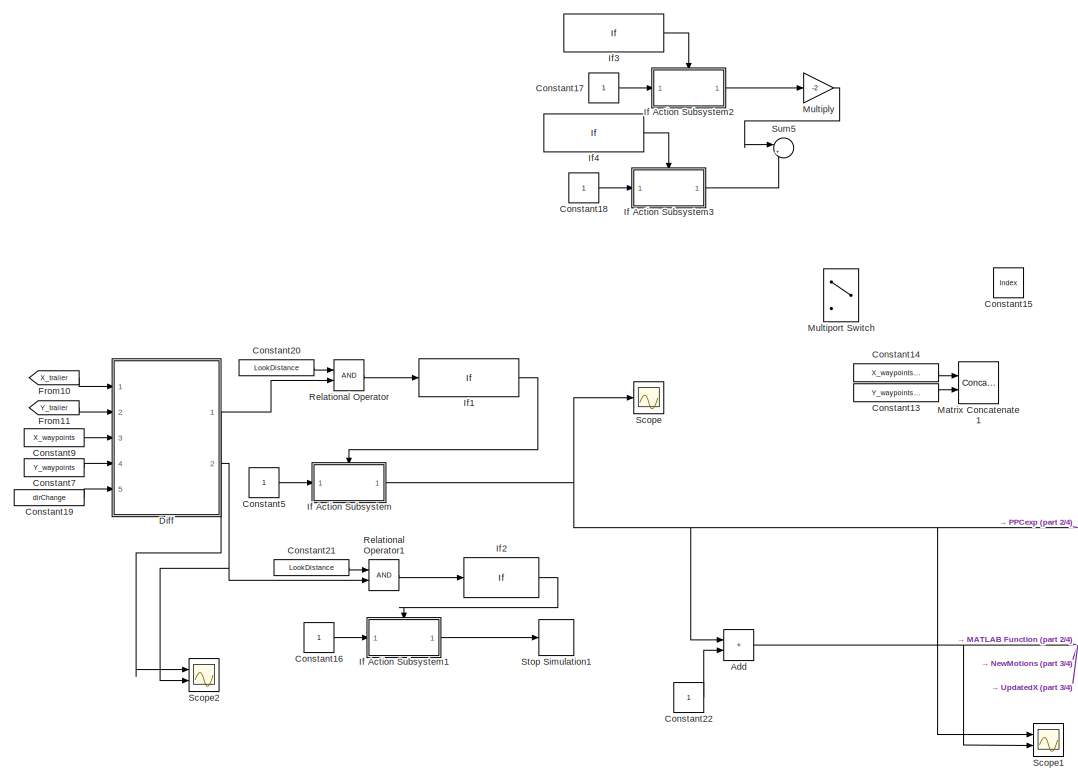
[diagram: root canvas - part 1/4, top left region]
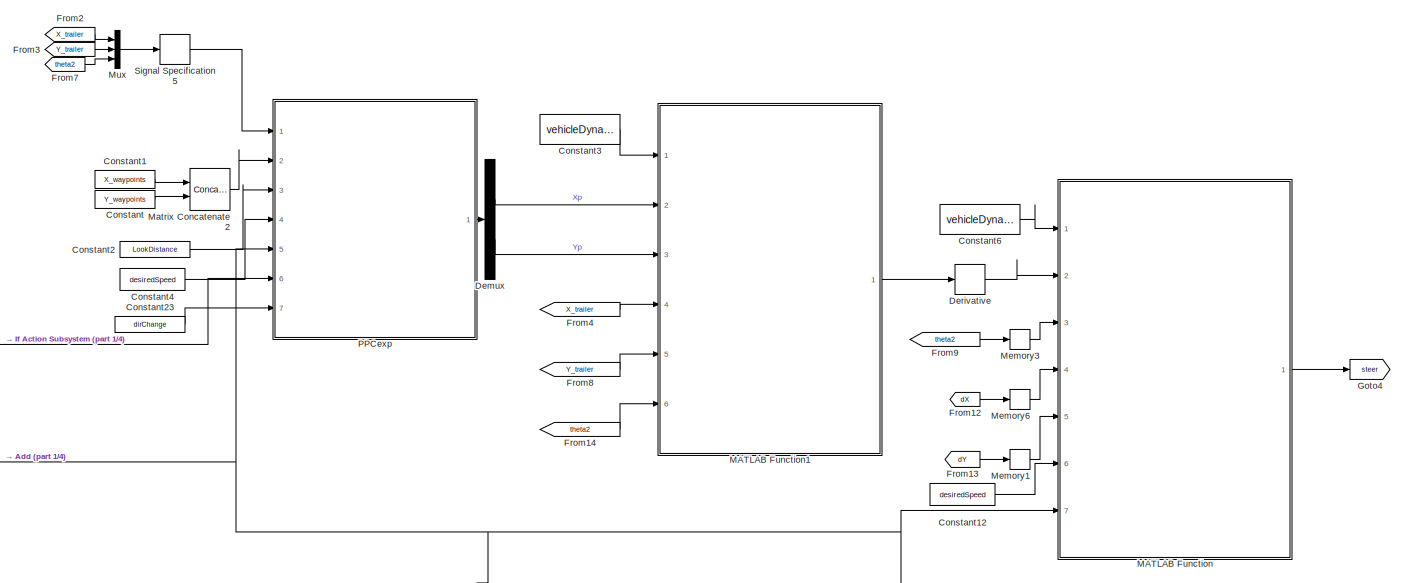
[diagram: root canvas - part 2/4, central region]
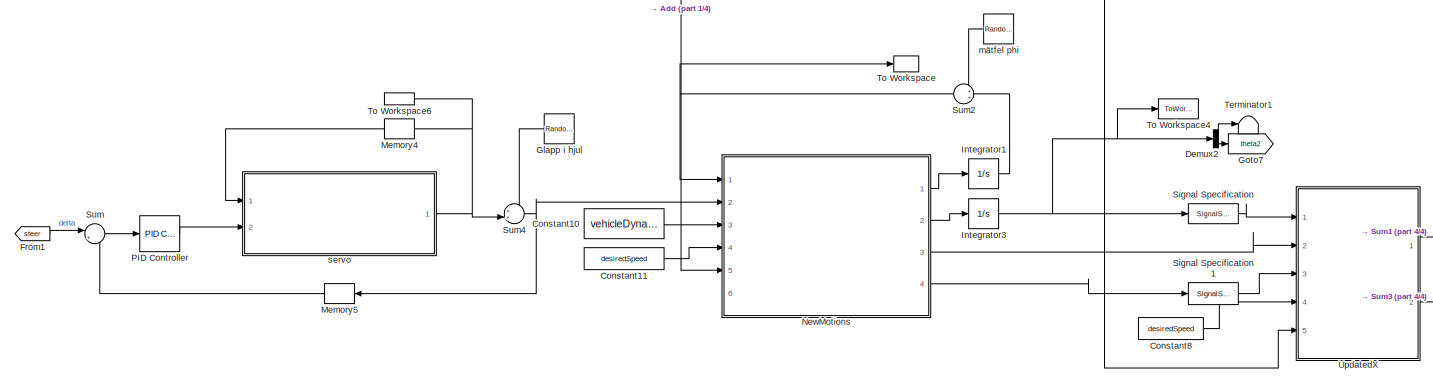
[diagram: root canvas - part 3/4, bottom center region]
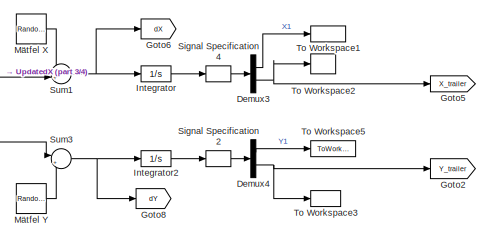
[diagram: root canvas - part 4/4, bottom right region]
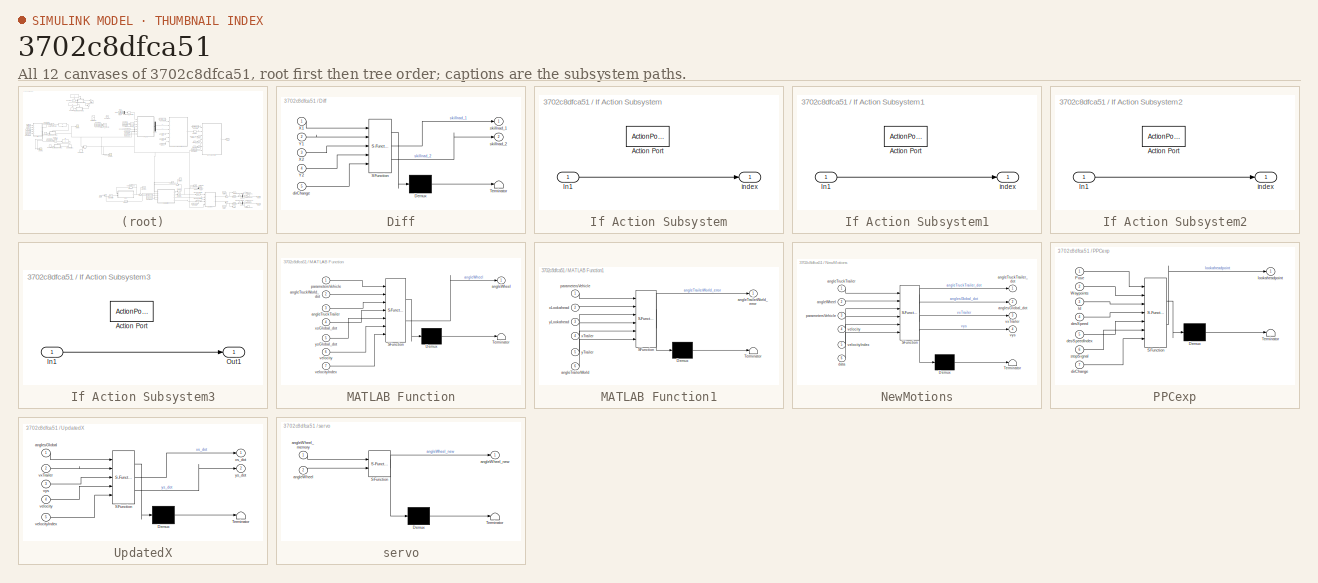
[diagram: thumbnail index - all 12 canvases of the model, root first then tree order]
MODEL slx_3702c8dfca51
KIND model
CONFIG AbsTol = auto
CONFIG EnableMultiTasking = off
CONFIG FixedStep = 1
CONFIG InitFcn = InitFcn;
CONFIG MaxStep = auto
CONFIG MinStep = auto
CONFIG RelTol = 1e-3
CONFIG SampleTimeConstraint = Unconstrained
CONFIG SolverName = VariableStepAuto
CONFIG StartTime = 0.0
CONFIG StopFcn = PostFunction;
CONFIG StopTime = 1000
BLOCK [Sum] Add
  IconShape = rectangular
  Ports = [2, 1]
BLOCK [Constant] Constant
  Value = Y_waypoints
BLOCK [Constant] Constant1
  Value = X_waypoints
BLOCK [Constant] Constant10
  Value = vehicleDynamics
BLOCK [Constant] Constant11
  Value = desiredSpeed
BLOCK [Constant] Constant12
  Value = desiredSpeed
BLOCK [Constant] Constant13
  Commented = on
  Value = Y_waypoints_2
BLOCK [Constant] Constant14
  Commented = on
  NameLocation = top
  Value = X_waypoints_2
BLOCK [Constant] Constant15
  Commented = on
  Value = Index
BLOCK [Constant] Constant16
BLOCK [Constant] Constant17
  Commented = on
BLOCK [Constant] Constant18
  Commented = on
BLOCK [Constant] Constant19
  Value = dirChange
BLOCK [Constant] Constant2
  Value = LookDistance
BLOCK [Constant] Constant20
  Value = LookDistance
BLOCK [Constant] Constant21
  Value = LookDistance
BLOCK [Constant] Constant22
BLOCK [Constant] Constant23
  Value = dirChange
BLOCK [Constant] Constant3
  Value = vehicleDynamics
BLOCK [Constant] Constant4
  Value = desiredSpeed
BLOCK [Constant] Constant5
BLOCK [Constant] Constant6
  Value = vehicleDynamics
BLOCK [Constant] Constant7
  Value = Y_waypoints
BLOCK [Constant] Constant8
  Value = desiredSpeed
BLOCK [Constant] Constant9
  Value = X_waypoints
BLOCK [Demux] Demux
  Outputs = 2
  Ports = [1, 2]
BLOCK [Demux] Demux2
  Outputs = 2
  Ports = [1, 2]
BLOCK [Demux] Demux3
  Outputs = 2
  Ports = [1, 2]
BLOCK [Demux] Demux4
  Outputs = 2
  Ports = [1, 2]
BLOCK [Derivative] Derivative
BLOCK [SubSystem] Diff
  ErrorFcn = Stateflow.Translate.translate
  PermitHierarchicalResolution = ExplicitOnly
  Ports = [5, 2]
  RequestExecContextInheritance = off
  SFBlockType = MATLAB Function
  TreatAsAtomicUnit = on
BLOCK [Demux] Diff/ Demux 
  Outputs = 1
  Ports = [1, 1]
BLOCK [S-Function] Diff/ SFunction 
  EnableBusSupport = on
  FunctionName = sf_sfun
  PortCounts = [5 3]
  Ports = [5, 3]
  SFcnIsStateOwnerBlock = off
  SFunctionDeploymentMode = off
  Tag = Stateflow S-Function 6
BLOCK [Terminator] Diff/ Terminator 
BLOCK [Inport] Diff/X1
BLOCK [Inport] Diff/X2
  Port = 3
BLOCK [Inport] Diff/Y1
  Port = 2
BLOCK [Inport] Diff/Y2
  Port = 4
BLOCK [Inport] Diff/dirChange
  Port = 5
BLOCK [Outport] Diff/skillnad_1
BLOCK [Outport] Diff/skillnad_2
  Port = 2
BLOCK [From] From1
  GotoTag = steer
BLOCK [From] From10
  GotoTag = X_trailer
BLOCK [From] From11
  GotoTag = Y_trailer
BLOCK [From] From12
  GotoTag = dX
BLOCK [From] From13
  GotoTag = dY
BLOCK [From] From14
  GotoTag = theta2
BLOCK [From] From2
  GotoTag = X_trailer
BLOCK [From] From3
  GotoTag = Y_trailer
BLOCK [From] From4
  GotoTag = X_trailer
BLOCK [From] From7
  GotoTag = theta2
BLOCK [From] From8
  GotoTag = Y_trailer
BLOCK [From] From9
  GotoTag = theta2
BLOCK [RandomNumber] Glapp i hjul
  SampleTime = 3
  Variance = (pi/360)^2
BLOCK [Goto] Goto2
  GotoTag = Y_trailer
BLOCK [Goto] Goto4
  GotoTag = steer
BLOCK [Goto] Goto5
  GotoTag = X_trailer
BLOCK [Goto] Goto6
  GotoTag = dX
BLOCK [Goto] Goto7
  GotoTag = theta2
BLOCK [Goto] Goto8
  GotoTag = dY
BLOCK [SubSystem] If Action Subsystem
  Ports = [1, 1, 0, 0, 0, 0, 0, 1]
  RequestExecContextInheritance = off
  TreatAsAtomicUnit = on
BLOCK [ActionPort] If Action Subsystem/Action Port
  ActionPortLabel = if(u1 == 1)
BLOCK [Inport] If Action Subsystem/In1
BLOCK [Outport] If Action Subsystem/index
BLOCK [SubSystem] If Action Subsystem1
  Ports = [1, 1, 0, 0, 0, 0, 0, 1]
  RequestExecContextInheritance = off
  TreatAsAtomicUnit = on
BLOCK [ActionPort] If Action Subsystem1/Action Port
  ActionPortLabel = if(u1 == 1)
BLOCK [Inport] If Action Subsystem1/In1
BLOCK [Outport] If Action Subsystem1/index
BLOCK [SubSystem] If Action Subsystem2
  Commented = on
  Ports = [1, 1, 0, 0, 0, 0, 0, 1]
  RequestExecContextInheritance = off
  TreatAsAtomicUnit = on
BLOCK [ActionPort] If Action Subsystem2/Action Port
  ActionPortLabel = if(u1 > 0.5)
BLOCK [Inport] If Action Subsystem2/In1
BLOCK [Outport] If Action Subsystem2/index
BLOCK [SubSystem] If Action Subsystem3
  Commented = on
  Ports = [1, 1, 0, 0, 0, 0, 0, 1]
  RequestExecContextInheritance = off
  TreatAsAtomicUnit = on
BLOCK [ActionPort] If Action Subsystem3/Action Port
  ActionPortLabel = if(u1 < 0.5)
BLOCK [Inport] If Action Subsystem3/In1
BLOCK [Outport] If Action Subsystem3/Out1
BLOCK [If] If1
  IfExpression = u1 == 1
  Ports = [1, 1]
  ShowElse = off
BLOCK [If] If2
  IfExpression = u1 == 1
  Ports = [1, 1]
  ShowElse = off
BLOCK [If] If3
  Commented = on
  IfExpression = u1 > 0.5
  Ports = [1, 1]
  ShowElse = off
BLOCK [If] If4
  Commented = on
  IfExpression = u1 < 0.5
  Ports = [1, 1]
  ShowElse = off
BLOCK [Integrator] Integrator
  InitialCondition = [0;-1.3]
  Ports = [1, 1]
BLOCK [Integrator] Integrator1
  Ports = [1, 1]
BLOCK [Integrator] Integrator2
  Ports = [1, 1]
BLOCK [Integrator] Integrator3
  Ports = [1, 1]
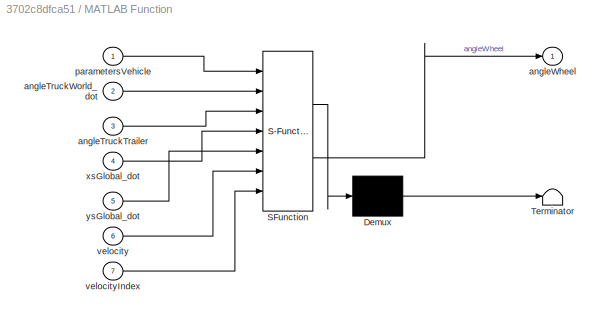
BLOCK [SubSystem] MATLAB Function
  ErrorFcn = Stateflow.Translate.translate
  PermitHierarchicalResolution = ExplicitOnly
  Ports = [7, 1]
  RequestExecContextInheritance = off
  SFBlockType = MATLAB Function
  TreatAsAtomicUnit = on
BLOCK [Demux] MATLAB Function/ Demux 
  Outputs = 1
  Ports = [1, 1]
BLOCK [S-Function] MATLAB Function/ SFunction 
  EnableBusSupport = on
  FunctionName = sf_sfun
  PortCounts = [7 2]
  Ports = [7, 2]
  SFcnIsStateOwnerBlock = off
  SFunctionDeploymentMode = off
  Tag = Stateflow S-Function 7
BLOCK [Terminator] MATLAB Function/ Terminator 
BLOCK [Inport] MATLAB Function/angleTruckTrailer
  Port = 3
BLOCK [Inport] MATLAB Function/angleTruckWorld_dot
  Port = 2
BLOCK [Outport] MATLAB Function/angleWheel
BLOCK [Inport] MATLAB Function/parametersVehicle
BLOCK [Inport] MATLAB Function/velocity
  Port = 6
BLOCK [Inport] MATLAB Function/velocityIndex
  Port = 7
BLOCK [Inport] MATLAB Function/xsGlobal_dot
  Port = 4
BLOCK [Inport] MATLAB Function/ysGlobal_dot
  Port = 5
BLOCK [SubSystem] MATLAB Function1
  ErrorFcn = Stateflow.Translate.translate
  PermitHierarchicalResolution = ExplicitOnly
  Ports = [6, 1]
  RequestExecContextInheritance = off
  SFBlockType = MATLAB Function
  TreatAsAtomicUnit = on
BLOCK [Demux] MATLAB Function1/ Demux 
  Outputs = 1
  Ports = [1, 1]
BLOCK [S-Function] MATLAB Function1/ SFunction 
  EnableBusSupport = on
  FunctionName = sf_sfun
  PortCounts = [6 2]
  Ports = [6, 2]
  SFcnIsStateOwnerBlock = off
  SFunctionDeploymentMode = off
  Tag = Stateflow S-Function 8
BLOCK [Terminator] MATLAB Function1/ Terminator 
BLOCK [Inport] MATLAB Function1/angleTrailerWorld
  Port = 6
BLOCK [Outport] MATLAB Function1/angleTrailerWorld_error
BLOCK [Inport] MATLAB Function1/parametersVehicle
BLOCK [Inport] MATLAB Function1/xLookahead
  Port = 2
BLOCK [Inport] MATLAB Function1/xTrailer
  Port = 4
BLOCK [Inport] MATLAB Function1/yLookahead
  Port = 3
BLOCK [Inport] MATLAB Function1/yTrailer
  Port = 5
BLOCK [Concatenate] Matrix Concatenate1
  Commented = on
  ConcatenateDimension = 2
  Mode = Multidimensional array
  Ports = [2, 1]
BLOCK [Concatenate] Matrix Concatenate2
  ConcatenateDimension = 2
  Mode = Multidimensional array
  Ports = [2, 1]
BLOCK [Memory] Memory1
BLOCK [Memory] Memory3
BLOCK [Memory] Memory4
BLOCK [Memory] Memory5
BLOCK [Memory] Memory6
BLOCK [Gain] Multiply
  Commented = on
  Gain = -2
BLOCK [MultiPortSwitch] Multiport Switch
  Commented = on
  InputSameDT = off
  Ports = [4, 1]
  SaturateOnIntegerOverflow = off
BLOCK [Mux] Mux
  DisplayOption = bar
  Inputs = 3
  Ports = [3, 1]
BLOCK [RandomNumber] Mätfel X
  SampleTime = 0.1
  Variance = (4e-5)^2
BLOCK [RandomNumber] Mätfel Y
  SampleTime = 0.1
  Variance = (4e-5)^2
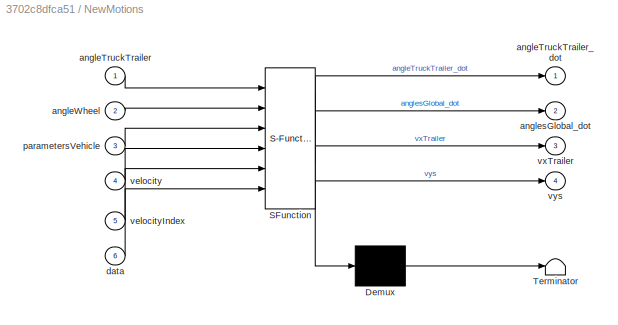
BLOCK [SubSystem] NewMotions
  ErrorFcn = Stateflow.Translate.translate
  PermitHierarchicalResolution = ExplicitOnly
  Ports = [6, 4]
  RequestExecContextInheritance = off
  SFBlockType = MATLAB Function
  TreatAsAtomicUnit = on
BLOCK [Demux] NewMotions/ Demux 
  Outputs = 1
  Ports = [1, 1]
BLOCK [S-Function] NewMotions/ SFunction 
  EnableBusSupport = on
  FunctionName = sf_sfun
  PortCounts = [6 5]
  Ports = [6, 5]
  SFcnIsStateOwnerBlock = off
  SFunctionDeploymentMode = off
  Tag = Stateflow S-Function 3
BLOCK [Terminator] NewMotions/ Terminator 
BLOCK [Inport] NewMotions/angleTruckTrailer
BLOCK [Outport] NewMotions/angleTruckTrailer_dot
BLOCK [Inport] NewMotions/angleWheel
  Port = 2
BLOCK [Outport] NewMotions/anglesGlobal_dot
  Port = 2
BLOCK [Inport] NewMotions/data
  Port = 6
BLOCK [Inport] NewMotions/parametersVehicle
  Port = 3
BLOCK [Inport] NewMotions/velocity
  Port = 4
BLOCK [Inport] NewMotions/velocityIndex
  Port = 5
BLOCK [Outport] NewMotions/vxTrailer
  Port = 3
BLOCK [Outport] NewMotions/vys
  Port = 4
BLOCK [Reference] PID Controller  REF=slpidlib/PID Controller
  Ports = [1, 1]
  SourceBlock = slpidlib/PID Controller
  SourceProductBaseCode = SL
  SourceType = PID 1dof
BLOCK [SubSystem] PPCexp
  ErrorFcn = Stateflow.Translate.translate
  PermitHierarchicalResolution = ExplicitOnly
  Ports = [7, 1]
  RequestExecContextInheritance = off
  SFBlockType = MATLAB Function
  TreatAsAtomicUnit = on
BLOCK [Demux] PPCexp/ Demux 
  Outputs = 1
  Ports = [1, 1]
BLOCK [S-Function] PPCexp/ SFunction 
  EnableBusSupport = on
  FunctionName = sf_sfun
  PortCounts = [7 2]
  Ports = [7, 2]
  SFcnIsStateOwnerBlock = off
  SFunctionDeploymentMode = off
  Tag = Stateflow S-Function 2
BLOCK [Terminator] PPCexp/ Terminator 
BLOCK [Inport] PPCexp/Pose
BLOCK [Inport] PPCexp/Waypoints
  Port = 2
BLOCK [Inport] PPCexp/desSpeed
  Port = 4
BLOCK [Inport] PPCexp/desSpeedIndex
  Port = 5
BLOCK [Inport] PPCexp/dirChange
  Port = 7
BLOCK [Inport] PPCexp/ld
  Port = 3
BLOCK [Outport] PPCexp/lookaheadpoint
BLOCK [Inport] PPCexp/stopSignal
  Port = 6
BLOCK [RelationalOperator] Relational Operator
  InputSameDT = off
  OutDataTypeStr = boolean
  Ports = [2, 1]
  RndMeth = Simplest
BLOCK [RelationalOperator] Relational Operator1
  InputSameDT = off
  OutDataTypeStr = boolean
  Ports = [2, 1]
  RndMeth = Simplest
BLOCK [Scope] Scope
  Floating = off
  NumInputPorts = 1
  Ports = [1]
  ScopeSpecificationString = Simulink.scopes.TimeScopeBlockCfg('CurrentConfiguration', extmgr.ConfigurationSet(extmgr.Configuration('Core','General UI',true),extmgr.Configuration('Core','Source UI',true),extmgr.Configuration('Sources','WiredSimulink',true),extmgr.Configuration('Visuals','Time Domain',true,'SerializedDisplays',{struct('MinYLimReal','-0.125','MaxYLimReal','1.125','YLabelReal','','MinYLimMag','0.00000','MaxYLimM...<+1356ch>
BLOCK [Scope] Scope1
  Floating = off
  NumInputPorts = 2
  Ports = [2]
  ScopeSpecificationString = Simulink.scopes.TimeScopeBlockCfg('CurrentConfiguration', extmgr.ConfigurationSet(extmgr.Configuration('Core','General UI',true),extmgr.Configuration('Core','Source UI',true),extmgr.Configuration('Sources','WiredSimulink',true,'DataLoggingVariableName','ScopeData1'),extmgr.Configuration('Visuals','Time Domain',true,'SerializedDisplays',{struct('MinYLimReal','-0.25','MaxYLimReal','2.25','YLabelReal...<+1395ch>
BLOCK [Scope] Scope2
  Floating = off
  NumInputPorts = 2
  Ports = [2]
  ScopeSpecificationString = Simulink.scopes.TimeScopeBlockCfg('CurrentConfiguration', extmgr.ConfigurationSet(extmgr.Configuration('Core','General UI',true),extmgr.Configuration('Core','Source UI',true),extmgr.Configuration('Sources','WiredSimulink',true,'DataLoggingVariableName','ScopeData1'),extmgr.Configuration('Visuals','Time Domain',true,'SerializedDisplays',{struct('MinYLimReal','-1.66892','MaxYLimReal','15.41148','YLa...<+1425ch>
BLOCK [SignalSpecification] Signal Specification
  Dimensions = 2
BLOCK [SignalSpecification] Signal Specification1
  Dimensions = 2
BLOCK [SignalSpecification] Signal Specification2
  Dimensions = 2
BLOCK [SignalSpecification] Signal Specification4
  Dimensions = 2
BLOCK [SignalSpecification] Signal Specification5
  Dimensions = 3
BLOCK [Stop] Stop Simulation1
BLOCK [Sum] Sum
  Inputs = |+-
  Ports = [2, 1]
BLOCK [Sum] Sum1
  Inputs = ++|
  NameLocation = top
  Ports = [2, 1]
BLOCK [Sum] Sum2
  Inputs = ++|
  Ports = [2, 1]
BLOCK [Sum] Sum3
  Inputs = |++
  NameLocation = top
  Ports = [2, 1]
BLOCK [Sum] Sum4
  Inputs = ++|
  Ports = [2, 1]
BLOCK [Sum] Sum5
  Commented = on
  Inputs = |++
  Ports = [2, 1]
BLOCK [Terminator] Terminator1
BLOCK [ToWorkspace] To Workspace
  MaxDataPoints = inf
  Ports = [1]
  SampleTime = -1
  VariableName = phi
BLOCK [ToWorkspace] To Workspace1
  MaxDataPoints = inf
  Ports = [1]
  SampleTime = -1
  VariableName = X1
BLOCK [ToWorkspace] To Workspace2
  MaxDataPoints = inf
  Ports = [1]
  SampleTime = -1
  VariableName = X2
BLOCK [ToWorkspace] To Workspace3
  MaxDataPoints = inf
  Ports = [1]
  SampleTime = -1
  VariableName = Y2
BLOCK [ToWorkspace] To Workspace4
  MaxDataPoints = inf
  Ports = [1]
  SampleTime = -1
  VariableName = theta
BLOCK [ToWorkspace] To Workspace5
  MaxDataPoints = inf
  Ports = [1]
  SampleTime = -1
  VariableName = Y1
BLOCK [ToWorkspace] To Workspace6
  MaxDataPoints = inf
  Ports = [1]
  SampleTime = -1
  VariableName = delta
BLOCK [SubSystem] UpdatedX
  ErrorFcn = Stateflow.Translate.translate
  PermitHierarchicalResolution = ExplicitOnly
  Ports = [5, 2]
  RequestExecContextInheritance = off
  SFBlockType = MATLAB Function
  TreatAsAtomicUnit = on
BLOCK [Demux] UpdatedX/ Demux 
  Outputs = 1
  Ports = [1, 1]
BLOCK [S-Function] UpdatedX/ SFunction 
  EnableBusSupport = on
  FunctionName = sf_sfun
  PortCounts = [5 3]
  Ports = [5, 3]
  SFcnIsStateOwnerBlock = off
  SFunctionDeploymentMode = off
  Tag = Stateflow S-Function 4
BLOCK [Terminator] UpdatedX/ Terminator 
BLOCK [Inport] UpdatedX/anglesGlobal
BLOCK [Inport] UpdatedX/velocity
  Port = 4
BLOCK [Inport] UpdatedX/velocityIndex
  Port = 5
BLOCK [Inport] UpdatedX/vxTrailer
  Port = 2
BLOCK [Inport] UpdatedX/vys
  Port = 3
BLOCK [Outport] UpdatedX/xs_dot
BLOCK [Outport] UpdatedX/ys_dot
  Port = 2
BLOCK [RandomNumber] mätfel phi
  SampleTime = 0.01
  Variance = (pi/360)^2
BLOCK [SubSystem] servo
  ErrorFcn = Stateflow.Translate.translate
  PermitHierarchicalResolution = ExplicitOnly
  Ports = [2, 1]
  RequestExecContextInheritance = off
  SFBlockType = MATLAB Function
  TreatAsAtomicUnit = on
BLOCK [Demux] servo/ Demux 
  Outputs = 1
  Ports = [1, 1]
BLOCK [S-Function] servo/ SFunction 
  EnableBusSupport = on
  FunctionName = sf_sfun
  PortCounts = [2 2]
  Ports = [2, 2]
  SFcnIsStateOwnerBlock = off
  SFunctionDeploymentMode = off
  Tag = Stateflow S-Function 1
BLOCK [Terminator] servo/ Terminator 
BLOCK [Inport] servo/angleWheel
  Port = 2
BLOCK [Inport] servo/angleWheel_memory
BLOCK [Outport] servo/angleWheel_new
NET Add:1 -> MATLAB Function:7, NewMotions:5, PPCexp:5, Scope1:2, UpdatedX:5
LINE Constant10:1 -> NewMotions:3
LINE Constant11:1 -> NewMotions:4
LINE Constant12:1 -> MATLAB Function:6
LINE Constant13:1 -> Matrix Concatenate1:2
LINE Constant14:1 -> Matrix Concatenate1:1
LINE Constant16:1 -> If Action Subsystem1:1
LINE Constant17:1 -> If Action Subsystem2:1
LINE Constant18:1 -> If Action Subsystem3:1
LINE Constant19:1 -> Diff:5
LINE Constant1:1 -> Matrix Concatenate2:1
LINE Constant20:1 -> Relational Operator:1
LINE Constant21:1 -> Relational Operator1:1
LINE Constant22:1 -> Add:2
LINE Constant23:1 -> PPCexp:7
LINE Constant2:1 -> PPCexp:3
LINE Constant3:1 -> MATLAB Function1:1
LINE Constant4:1 -> PPCexp:4
LINE Constant5:1 -> If Action Subsystem:1
LINE Constant6:1 -> MATLAB Function:1
LINE Constant7:1 -> Diff:4
LINE Constant8:1 -> UpdatedX:4
LINE Constant9:1 -> Diff:3
LINE Constant:1 -> Matrix Concatenate2:2
LINE Demux2:1 -> Terminator1:1
LINE Demux2:2 -> Goto7:1
LINE Demux3:1 -> To Workspace1:1
NET Demux3:2 -> Goto5:1, To Workspace2:1
LINE Demux4:1 -> To Workspace5:1
NET Demux4:2 -> Goto2:1, To Workspace3:1
LINE Demux:1 -> MATLAB Function1:2
LINE Demux:2 -> MATLAB Function1:3
LINE Derivative:1 -> MATLAB Function:2
NET Diff:1 -> Relational Operator:2, Scope2:1
NET Diff:2 -> Relational Operator1:2, Scope2:2
LINE From10:1 -> Diff:1
LINE From11:1 -> Diff:2
LINE From12:1 -> Memory6:1
LINE From13:1 -> Memory1:1
LINE From14:1 -> MATLAB Function1:6
LINE From1:1 -> Sum:1
LINE From2:1 -> Mux:1
LINE From3:1 -> Mux:2
LINE From4:1 -> MATLAB Function1:4
LINE From7:1 -> Mux:3
LINE From8:1 -> MATLAB Function1:5
LINE From9:1 -> Memory3:1
LINE Glapp i hjul:1 -> Sum4:1
LINE If Action Subsystem/In1:1 -> If Action Subsystem/index:1
LINE If Action Subsystem1/In1:1 -> If Action Subsystem1/index:1
LINE If Action Subsystem1:1 -> Stop Simulation1:1
LINE If Action Subsystem2/In1:1 -> If Action Subsystem2/index:1
LINE If Action Subsystem2:1 -> Multiply:1
LINE If Action Subsystem3/In1:1 -> If Action Subsystem3/Out1:1
LINE If Action Subsystem3:1 -> Sum5:2
NET If Action Subsystem:1 -> Add:1, PPCexp:6, Scope1:1, Scope:1
LINE If1:1 -> If Action Subsystem:ifaction
LINE If2:1 -> If Action Subsystem1:ifaction
LINE If3:1 -> If Action Subsystem2:ifaction
LINE If4:1 -> If Action Subsystem3:ifaction
LINE Integrator1:1 -> Sum2:2
LINE Integrator2:1 -> Signal Specification2:1
NET Integrator3:1 -> Demux2:1, Signal Specification:1, To Workspace4:1
LINE Integrator:1 -> Signal Specification4:1
LINE MATLAB Function1:1 -> Derivative:1
LINE MATLAB Function:1 -> Goto4:1
LINE Matrix Concatenate2:1 -> PPCexp:2
LINE Memory1:1 -> MATLAB Function:5
LINE Memory3:1 -> MATLAB Function:3
LINE Memory4:1 -> servo:1
LINE Memory5:1 -> Sum:2
LINE Memory6:1 -> MATLAB Function:4
LINE Multiply:1 -> Sum5:1
LINE Mux:1 -> Signal Specification5:1
LINE Mätfel X:1 -> Sum1:1
LINE Mätfel Y:1 -> Sum3:2
LINE NewMotions:1 -> Integrator1:1
LINE NewMotions:2 -> Integrator3:1
LINE NewMotions:3 -> UpdatedX:2
LINE NewMotions:4 -> Signal Specification1:1
LINE PID Controller:1 -> servo:2
LINE PPCexp:1 -> Demux:1
LINE Relational Operator1:1 -> If2:1
LINE Relational Operator:1 -> If1:1
LINE Signal Specification1:1 -> UpdatedX:3
LINE Signal Specification2:1 -> Demux4:1
LINE Signal Specification4:1 -> Demux3:1
LINE Signal Specification5:1 -> PPCexp:1
LINE Signal Specification:1 -> UpdatedX:1
NET Sum1:1 -> Goto6:1, Integrator:1
NET Sum2:1 -> NewMotions:1, To Workspace:1
NET Sum3:1 -> Goto8:1, Integrator2:1
NET Sum4:1 -> Memory5:1, NewMotions:2
LINE Sum:1 -> PID Controller:1
LINE UpdatedX:1 -> Sum1:2
LINE UpdatedX:2 -> Sum3:1
LINE mätfel phi:1 -> Sum2:1
NET servo:1 -> Memory4:1, Sum4:2, To Workspace6:1
note: NET lines group one-source signal fan-out (src -> all destinations, sorted); 1:1 wires keep LINE
CHART servo states=1 transitions=1
  STATE_LABEL 'eML_blk_kernel()'
  STATE_LABEL 'SCRIPT:\nfunction angleWheel_new = MotorAngle(angleWheel_memory, angleWheel)\n    rotationThreshold = pi/180;\n    \n    rotation = angleWheel - angleWheel_memory;\n    if abs(rotation) > rotationThreshold\n        angleWheel_new = angleWheel_memory + sign(rotation) * rotationThreshold;\n    else\n        angleWheel_new = angleWheel;\n    end\n\n    angleWheel_new = min(max(angleWheel_new, -pi * 28 / 180), p...<+55ch>'
CHART PPCexp states=1 transitions=1
  STATE_LABEL 'eML_blk_kernel()'
  STATE_LABEL "SCRIPT:\nfunction lookaheadpoint = PurePursuit(Pose, Waypoints, ld, desSpeed, desSpeedIndex, stopSignal, dirChange)\n\n% ORGINAL\n%controller = controllerPurePursuit('DesiredLinearVelocity', abs(desSpeed), 'Waypoints', Waypoints, 'LookaheadDistance',ld); \n\n% FÖRSTA HÄLFTEN\n%controller = controllerPurePursuit('DesiredLinearVelocity', abs(desSpeed), 'Waypoints', Waypoints(1:end/2,:), 'LookaheadDistance'...<+456ch>"
CHART NewMotions states=1 transitions=1
  STATE_LABEL 'eML_blk_kernel()'
  STATE_LABEL 'SCRIPT:\n%This function is our "Plant" in here is all the kinematics of trailer and\n%dolly. It output is change in phi and theta and velocity in x and y\n%direction. Most of this is taken from the previous code but change in\n%varibale names\nfunction [angleTruckTrailer_dot, anglesGlobal_dot, vxTrailer, vys] = Motions(angleTruckTrailer, angleWheel, parametersVehicle, velocity, velocityIndex, data)\n   ...<+1168ch>'
CHART UpdatedX states=1 transitions=1
  STATE_LABEL 'eML_blk_kernel()'
  STATE_LABEL 'SCRIPT:\nfunction [xs_dot, ys_dot] = GlobalPos(anglesGlobal, vxTrailer, vys, velocity, velocityIndex)\n\n    velocity = velocity(velocityIndex); %04-03\n    \n    xs_dot=[0;0];\n    xs_dot(1) = velocity*cos(anglesGlobal(1))-vys(1)*sin(anglesGlobal(1));\n    xs_dot(2) = vxTrailer*cos(anglesGlobal(2))-vys(2)*sin(anglesGlobal(2));\n\n    ys_dot=[0;0];\n    ys_dot(1) = vys(1)*cos(anglesGlobal(1))+velocity*sin(a...<+98ch>'
CHART Diff states=1 transitions=1
  STATE_LABEL 'eML_blk_kernel()'
  STATE_LABEL 'SCRIPT:\nfunction [skillnad_1, skillnad_2] = diffunktion(X1, Y1, X2, Y2, dirChange)\n\n\ntrailer=[X1 Y1];\n\n\npath_1=[X2(end*dirChange) Y2(end*dirChange)];\n\npath_2=[X2(end) Y2(end)];\n\n\n\nskillnad_1 = norm(path_1 - trailer);\nskillnad_2 = norm(path_2 - trailer);\n\nend'
CHART MATLAB Function states=1 transitions=1
  STATE_LABEL 'eML_blk_kernel()'
  STATE_LABEL 'SCRIPT:\n%This function is supposed to calculate a desired steeringangle so that\n%phi_des is meet. \n\nfunction angleWheel = UpdateWheelAngle(parametersVehicle, angleTruckWorld_dot, angleTruckTrailer, xsGlobal_dot, ysGlobal_dot, velocity, velocityIndex)\n\n    velocity = velocity(velocityIndex);\n\n    b_d = parametersVehicle(1);\n    L_d = parametersVehicle(2);\n    L_s = parametersVehicle(3);\n    b_s = p...<+206ch>'
CHART MATLAB Function1 states=1 transitions=1
  STATE_LABEL 'eML_blk_kernel()'
  STATE_LABEL 'SCRIPT:\n%this funciton calculates phi_error which is the diffrence of angle between\n%theta (trailers position angle) and the lookahead point (desired heading \n%angle). Which gives us phi_des, desired angle between trailer and dolly\n\nfunction angleTrailerWorld_error = UpdateTrailerWorldAngle(parametersVehicle, xLookahead, yLookahead, xTrailer, yTrailer, angleTrailerWorld)\n    b_d = parametersVehicl...<+606ch>'
CHART  states=0 transitions=0
CHART  states=0 transitions=0
CHART  states=0 transitions=0
CHART  states=0 transitions=0
CHART  states=0 transitions=0
CHART  states=0 transitions=0
CHART  states=0 transitions=0
